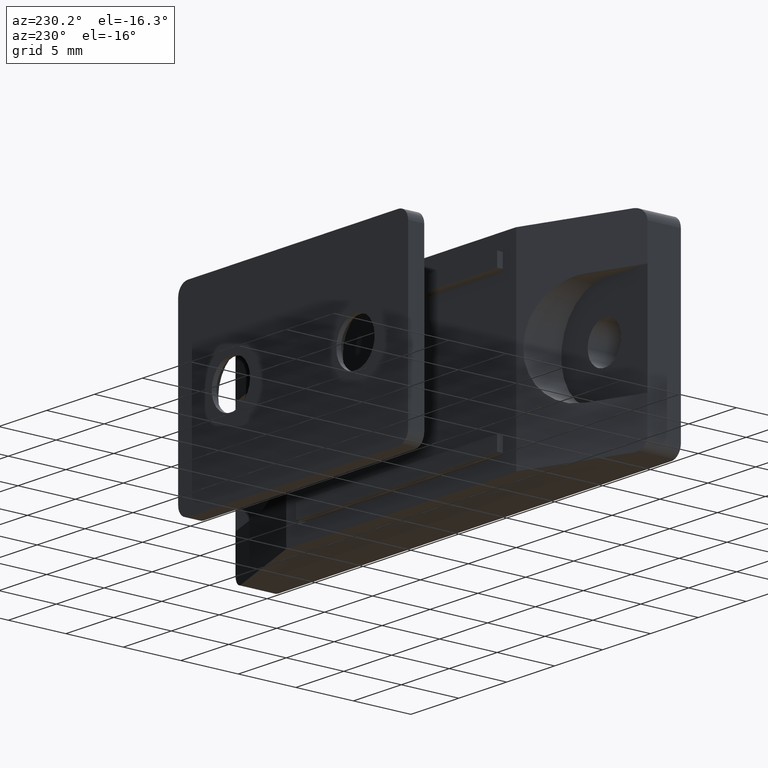
[diagram: clean part render]
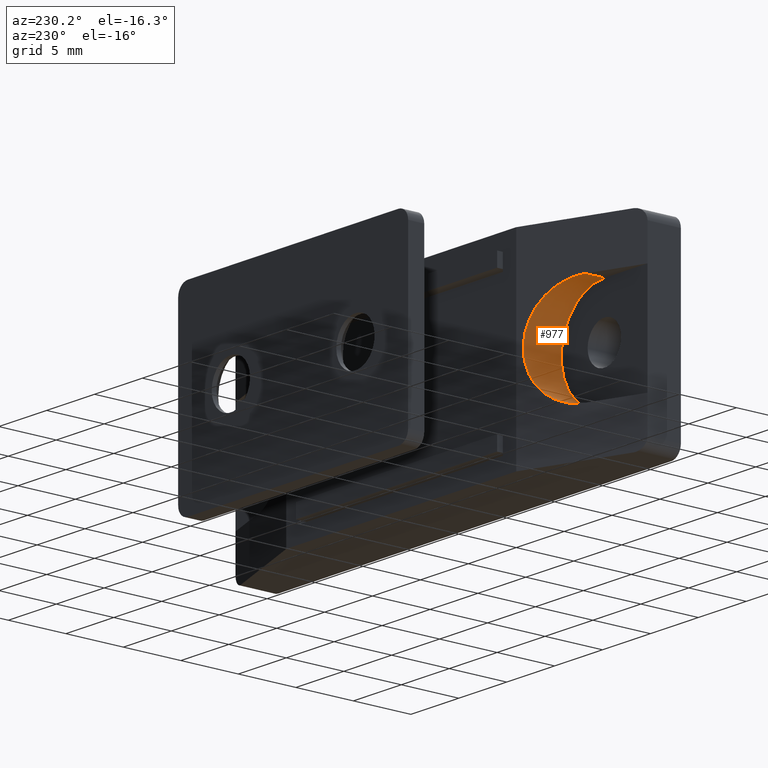
[diagram: same view with one face highlighted and labeled with its STEP entity id]
A machine part, auxiliary view. The second image highlights one B-rep face of the part: STEP entity #977.
In plain terms, the highlighted cylindrical surface (partial cylindrical patch) has radius 4.5 mm, axis along (0, 1, -0).
Its self-contained STEP definition (entity closure, byte-faithful):
#111=FACE_OUTER_BOUND('',#174,.T.);
#174=EDGE_LOOP('',(#738,#739,#740,#741));
#236=ELLIPSE('',#1054,4.79568712057498,4.5);
#260=LINE('',#1491,#362);
#261=LINE('',#1495,#363);
#362=VECTOR('',#1195,1.65789473684211);
#363=VECTOR('',#1200,1.65789473684211);
#450=CIRCLE('',#1051,4.5);
#492=VERTEX_POINT('',#1483);
#493=VERTEX_POINT('',#1485);
#494=VERTEX_POINT('',#1489);
#495=VERTEX_POINT('',#1493);
#588=EDGE_CURVE('',#492,#493,#450,.T.);
#591=EDGE_CURVE('',#494,#493,#260,.T.);
#592=EDGE_CURVE('',#494,#495,#236,.T.);
#593=EDGE_CURVE('',#495,#492,#261,.T.);
#738=ORIENTED_EDGE('',*,*,#592,.F.);
#739=ORIENTED_EDGE('',*,*,#591,.T.);
#740=ORIENTED_EDGE('',*,*,#588,.F.);
#741=ORIENTED_EDGE('',*,*,#593,.F.);
#958=CYLINDRICAL_SURFACE('',#1053,4.5);
#977=ADVANCED_FACE('',(#111),#958,.F.);
#1051=AXIS2_PLACEMENT_3D('',#1486,#1189,#1190);
#1053=AXIS2_PLACEMENT_3D('',#1492,#1196,#1197);
#1054=AXIS2_PLACEMENT_3D('',#1494,#1198,#1199);
#1189=DIRECTION('center_axis',(0.,0.,1.));
#1190=DIRECTION('ref_axis',(0.,1.,0.));
#1195=DIRECTION('',(0.,0.,-1.));
#1196=DIRECTION('center_axis',(0.,0.,1.));
#1197=DIRECTION('ref_axis',(0.,1.,0.));
#1198=DIRECTION('center_axis',(0.345705358827357,0.,-0.93834311681711));
#1199=DIRECTION('ref_axis',(-0.93834311681711,0.,-0.345705358827357));
#1200=DIRECTION('',(0.,0.,-1.));
#1483=CARTESIAN_POINT('',(-17.,-4.5,-3.5));
#1485=CARTESIAN_POINT('',(-17.,4.5,-3.5));
#1486=CARTESIAN_POINT('Origin',(-17.,0.,-3.5));
#1489=CARTESIAN_POINT('',(-17.,4.5,-1.84210526315789));
#1491=CARTESIAN_POINT('',(-17.,4.5,0.));
#1492=CARTESIAN_POINT('Origin',(-17.,0.,0.));
#1493=CARTESIAN_POINT('',(-17.,-4.5,-1.84210526315789));
#1494=CARTESIAN_POINT('Origin',(-17.,0.,-1.84210526315789));
#1495=CARTESIAN_POINT('',(-17.,-4.5,0.));